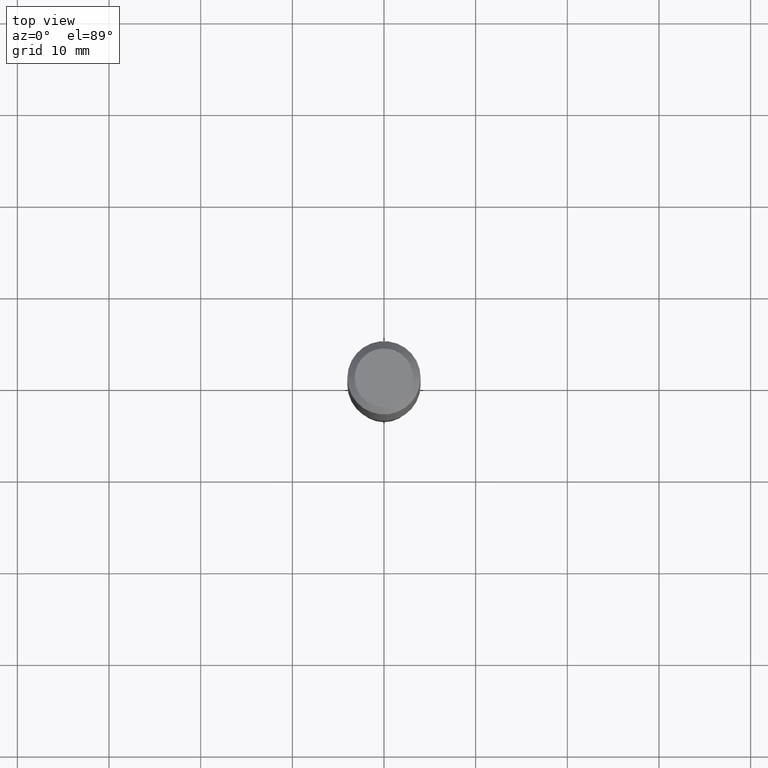
[diagram: clean part render]
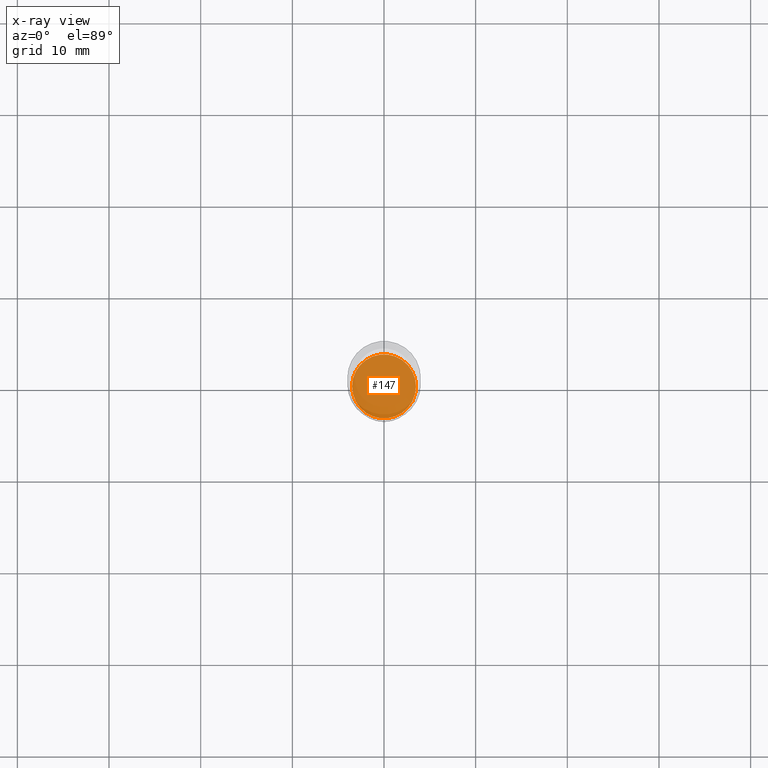
[diagram: x-ray — body ghosted, one internal face saturated and labeled with its STEP entity id]
A machine part, top view, then the same camera in x-ray: the body is ghosted and one INTERNAL B-rep face — a face not visible from any outside direction — is saturated and labeled: STEP entity #147.
In plain terms, the highlighted planar face has unit normal (-0, 0, 1).
Its self-contained STEP definition (entity closure, byte-faithful):
#1 = DIRECTION ( 'NONE',  ( -2.445468806185136597E-29, 3.491481338843145583E-15, 1.000000000000000000 ) ) ;
#71 = EDGE_CURVE ( 'NONE', #199, #159, #246, .T. ) ;
#83 = AXIS2_PLACEMENT_3D ( 'NONE', #287, #1, #127 ) ;
#90 = EDGE_CURVE ( 'NONE', #159, #199, #215, .T. ) ;
#98 = FACE_OUTER_BOUND ( 'NONE', #302, .T. ) ;
#122 = DIRECTION ( 'NONE',  ( 1.000000000000000000, -6.982962677686269866E-15, 0.000000000000000000 ) ) ;
#127 = DIRECTION ( 'NONE',  ( 1.000000000000000000, -6.982962677686269866E-15, 0.000000000000000000 ) ) ;
#147 = ADVANCED_FACE ( 'NONE', ( #98 ), #367, .F. ) ;
#159 = VERTEX_POINT ( 'NONE', #254 ) ;
#179 = CARTESIAN_POINT ( 'NONE',  ( 5.295173606032675561E-29, -7.560104542997063911E-15, -2.165299999999999780 ) ) ;
#199 = VERTEX_POINT ( 'NONE', #301 ) ;
#201 = ORIENTED_EDGE ( 'NONE', *, *, #71, .F. ) ;
#203 = DIRECTION ( 'NONE',  ( -2.445468806185136597E-29, 3.491481338843145583E-15, 1.000000000000000000 ) ) ;
#215 = CIRCLE ( 'NONE', #336, 0.1373000000000000054 ) ;
#246 = CIRCLE ( 'NONE', #83, 0.1373000000000000054 ) ;
#254 = CARTESIAN_POINT ( 'NONE',  ( -0.1373000000000000054, -6.581880139624335314E-15, -2.165299999999999780 ) ) ;
#287 = CARTESIAN_POINT ( 'NONE',  ( 5.295173606032675561E-29, -7.560104542997063911E-15, -2.165299999999999780 ) ) ;
#301 = CARTESIAN_POINT ( 'NONE',  ( 0.1373000000000000054, -8.518865318643388381E-15, -2.165299999999999780 ) ) ;
#302 = EDGE_LOOP ( 'NONE', ( #201, #326 ) ) ;
#326 = ORIENTED_EDGE ( 'NONE', *, *, #90, .F. ) ;
#336 = AXIS2_PLACEMENT_3D ( 'NONE', #472, #203, #122 ) ;
#367 = PLANE ( 'NONE',  #430 ) ;
#430 = AXIS2_PLACEMENT_3D ( 'NONE', #179, #450, #446 ) ;
#446 = DIRECTION ( 'NONE',  ( 1.000000000000000000, -6.982962677686265922E-15, 4.876176775795935793E-29 ) ) ;
#450 = DIRECTION ( 'NONE',  ( -2.438088387897960049E-29, 3.491481338843145188E-15, 1.000000000000000000 ) ) ;
#472 = CARTESIAN_POINT ( 'NONE',  ( 5.295173606032675561E-29, -7.560104542997063911E-15, -2.165299999999999780 ) ) ;